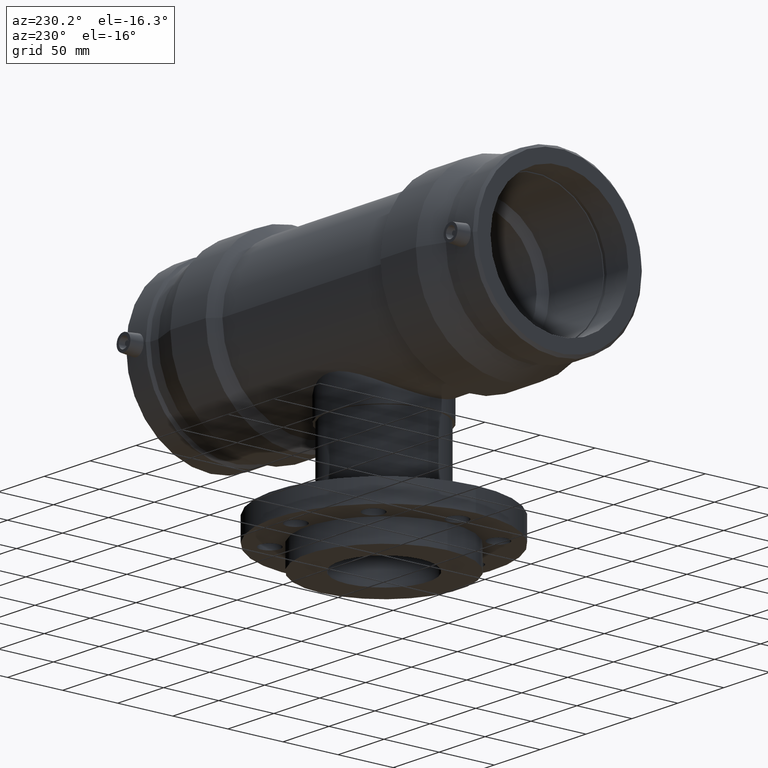
[diagram: clean part render]
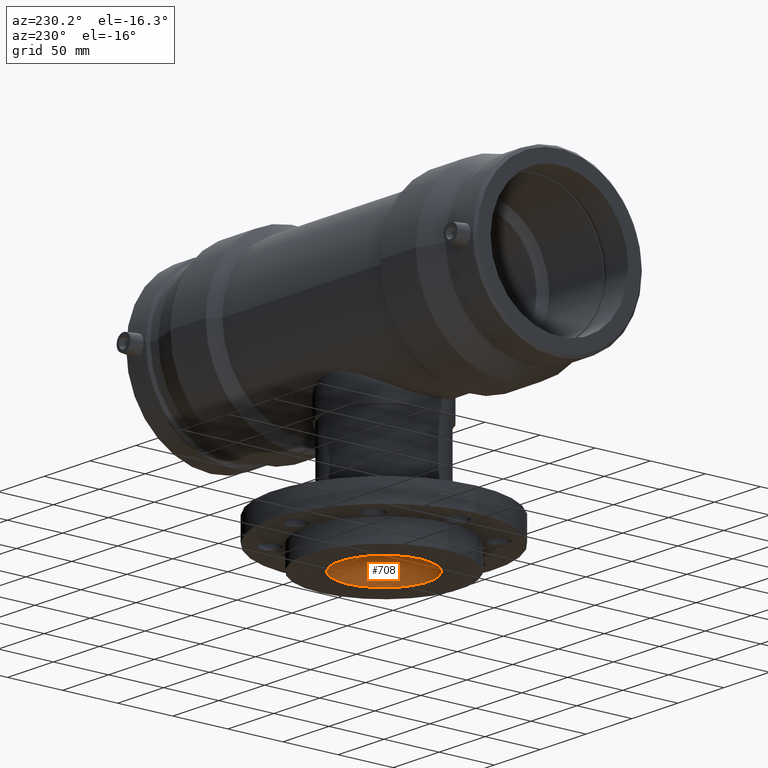
[diagram: same view with one face highlighted and labeled with its STEP entity id]
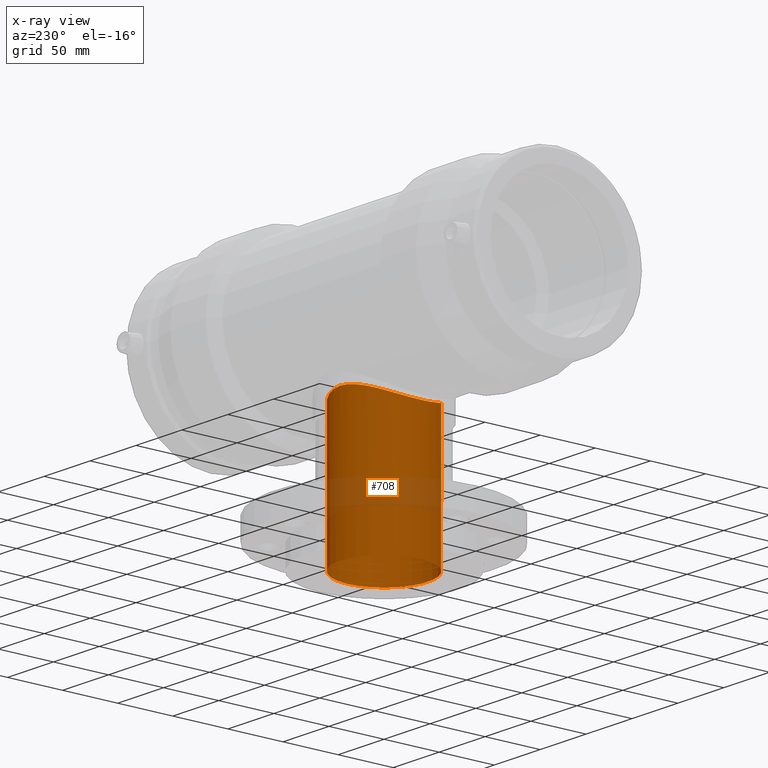
[diagram: x-ray of the same camera — body ghosted, the highlighted face saturated]
A machine part, auxiliary view. The second image highlights one B-rep face of the part: STEP entity #708.
The next image is the same camera in x-ray: the body ghosted, the highlighted face saturated — about 17% of this face is hidden behind the body in this view.
In plain terms, the highlighted cylindrical surface (bore or boss wall) has radius 40 mm, axis along (-0, 0, -1).
Its self-contained STEP definition (entity closure, byte-faithful):
#52=FACE_BOUND('',#293,.T.);
#137=CIRCLE('',#786,40.);
#193=CYLINDRICAL_SURFACE('',#785,40.);
#224=FACE_OUTER_BOUND('',#292,.T.);
#292=EDGE_LOOP('',(#578));
#293=EDGE_LOOP('',(#579));
#414=B_SPLINE_CURVE_WITH_KNOTS('',3,(#1267,#1268,#1269,#1270,#1271,#1272,
#1273,#1274,#1275,#1276,#1277,#1278,#1279,#1280,#1281,#1282,#1283,#1284,
#1285,#1286,#1287,#1288,#1289,#1290,#1291,#1292,#1293,#1294,#1295,#1296,
#1297,#1298,#1299,#1300,#1301,#1302,#1303,#1304,#1305,#1306,#1307,#1308,
#1309,#1310,#1311,#1312,#1313,#1314,#1315,#1316,#1317,#1318,#1319,#1320,
#1321,#1322,#1323,#1324,#1325,#1326,#1327,#1328,#1329,#1330,#1331,#1332,
#1333,#1334,#1335,#1336,#1337,#1338,#1339,#1340,#1341,#1342,#1343,#1344,
#1345,#1346,#1347,#1348,#1349,#1350,#1351,#1352,#1353,#1354,#1355,#1356,
#1357,#1358,#1359,#1360,#1361,#1362,#1363),.UNSPECIFIED.,.T.,.F.,(4,3,3,
3,3,3,3,3,3,3,3,3,3,3,3,3,3,3,3,3,3,3,3,3,3,3,3,3,3,3,3,3,4),(0.,0.773205231529878,
1.54641046305976,2.31961569458963,3.09282092611951,3.86304966834364,4.63327841056777,
5.40350715279191,6.17373589501604,6.94396463724017,7.7141933794643,8.48442212168843,
9.25465086391256,10.0278560954424,10.8010613269723,11.5742665585022,12.3474717900321,
13.120677021562,13.8938822530918,14.6670874846217,15.4402927161516,16.2105214583757,
16.9807502005999,17.750978942824,18.5212076850481,19.2914364272722,20.0616651694964,
20.8318939117205,21.6021226539446,22.3753278854745,23.1485331170044,23.9217383485343,
24.6949435800641),.UNSPECIFIED.);
#419=VERTEX_POINT('',#1266);
#437=VERTEX_POINT('',#1451);
#488=EDGE_CURVE('',#419,#419,#414,.T.);
#507=EDGE_CURVE('',#437,#437,#137,.T.);
#578=ORIENTED_EDGE('',*,*,#507,.T.);
#579=ORIENTED_EDGE('',*,*,#488,.F.);
#708=ADVANCED_FACE('',(#224,#52),#193,.F.);
#785=AXIS2_PLACEMENT_3D('',#1450,#935,#936);
#786=AXIS2_PLACEMENT_3D('',#1452,#937,#938);
#935=DIRECTION('center_axis',(-1.22464679914735E-16,0.,-1.));
#936=DIRECTION('ref_axis',(-1.,0.,0.));
#937=DIRECTION('center_axis',(-1.22464679914735E-16,0.,-1.));
#938=DIRECTION('ref_axis',(1.,0.,-1.22464679914735E-16));
#1266=CARTESIAN_POINT('',(-5.55111512312578E-15,40.,-62.5544762586979));
#1267=CARTESIAN_POINT('Ctrl Pts',(-7.7715611723761E-15,40.,-62.5544762586979));
#1268=CARTESIAN_POINT('Ctrl Pts',(2.57735077176625,40.,-62.5544762586979));
#1269=CARTESIAN_POINT('Ctrl Pts',(5.21903669254779,39.7470429807553,-62.7185000260456));
#1270=CARTESIAN_POINT('Ctrl Pts',(7.82581885655851,39.2269876389245,-63.0420965766183));
#1271=CARTESIAN_POINT('Ctrl Pts',(10.4326010205692,38.7069322970936,-63.3656931271909));
#1272=CARTESIAN_POINT('Ctrl Pts',(13.0047276935096,37.9202489059983,-63.8476195007932));
#1273=CARTESIAN_POINT('Ctrl Pts',(15.456860538083,36.892891758544,-64.4358365949689));
#1274=CARTESIAN_POINT('Ctrl Pts',(17.9089933826565,35.8655346110898,-65.0240536891447));
#1275=CARTESIAN_POINT('Ctrl Pts',(20.2460272576422,34.5958572989271,-65.7179032935187));
#1276=CARTESIAN_POINT('Ctrl Pts',(22.4023856760191,33.1380916170937,-66.4449349760921));
#1277=CARTESIAN_POINT('Ctrl Pts',(24.5587440943959,31.6803259352603,-67.1719666586655));
#1278=CARTESIAN_POINT('Ctrl Pts',(26.534547121693,30.0339953732308,-67.9308679791829));
#1279=CARTESIAN_POINT('Ctrl Pts',(28.2842712474619,28.2842712474619,-68.6517479748331));
#1280=CARTESIAN_POINT('Ctrl Pts',(30.0272597292698,26.541282765654,-69.3698529095935));
#1281=CARTESIAN_POINT('Ctrl Pts',(31.6725765063728,24.5688687689905,-70.1038662981135));
#1282=CARTESIAN_POINT('Ctrl Pts',(33.1316558517629,22.4119026528392,-70.786786333889));
#1283=CARTESIAN_POINT('Ctrl Pts',(34.5907351971531,20.254936536688,-71.4697063696645));
#1284=CARTESIAN_POINT('Ctrl Pts',(35.8637997226038,17.9132558815804,-72.1005442532786));
#1285=CARTESIAN_POINT('Ctrl Pts',(36.8931804209487,15.4561715320237,-72.6234759672977));
#1286=CARTESIAN_POINT('Ctrl Pts',(37.9225611192936,12.9990871824671,-73.1464076813167));
#1287=CARTESIAN_POINT('Ctrl Pts',(38.7099091313247,10.4217964829286,-73.561714902663));
#1288=CARTESIAN_POINT('Ctrl Pts',(39.2293617390013,7.81390923613644,-73.8376958094537));
#1289=CARTESIAN_POINT('Ctrl Pts',(39.7488143466779,5.20602198934433,-74.1136767162444));
#1290=CARTESIAN_POINT('Ctrl Pts',(40.,2.56742914074711,-74.25));
#1291=CARTESIAN_POINT('Ctrl Pts',(40.,4.16333634234434E-15,-74.25));
#1292=CARTESIAN_POINT('Ctrl Pts',(40.,-2.5674291407471,-74.25));
#1293=CARTESIAN_POINT('Ctrl Pts',(39.7488143466779,-5.20602198934432,-74.1136767162444));
#1294=CARTESIAN_POINT('Ctrl Pts',(39.2293617390013,-7.81390923613643,-73.8376958094537));
#1295=CARTESIAN_POINT('Ctrl Pts',(38.7099091313247,-10.4217964829286,-73.561714902663));
#1296=CARTESIAN_POINT('Ctrl Pts',(37.9225611192936,-12.9990871824671,-73.1464076813167));
#1297=CARTESIAN_POINT('Ctrl Pts',(36.8931804209487,-15.4561715320237,-72.6234759672977));
#1298=CARTESIAN_POINT('Ctrl Pts',(35.8637997226038,-17.9132558815804,-72.1005442532786));
#1299=CARTESIAN_POINT('Ctrl Pts',(34.5907351971531,-20.254936536688,-71.4697063696645));
#1300=CARTESIAN_POINT('Ctrl Pts',(33.1316558517629,-22.4119026528392,-70.786786333889));
#1301=CARTESIAN_POINT('Ctrl Pts',(31.6725765063728,-24.5688687689905,-70.1038662981135));
#1302=CARTESIAN_POINT('Ctrl Pts',(30.0272597292698,-26.541282765654,-69.3698529095935));
#1303=CARTESIAN_POINT('Ctrl Pts',(28.2842712474619,-28.2842712474619,-68.6517479748331));
#1304=CARTESIAN_POINT('Ctrl Pts',(26.534547121693,-30.0339953732308,-67.9308679791829));
#1305=CARTESIAN_POINT('Ctrl Pts',(24.5587440943959,-31.6803259352604,-67.1719666586655));
#1306=CARTESIAN_POINT('Ctrl Pts',(22.4023856760191,-33.1380916170937,-66.4449349760921));
#1307=CARTESIAN_POINT('Ctrl Pts',(20.2460272576422,-34.595857298927,-65.7179032935187));
#1308=CARTESIAN_POINT('Ctrl Pts',(17.9089933826565,-35.8655346110898,-65.0240536891447));
#1309=CARTESIAN_POINT('Ctrl Pts',(15.456860538083,-36.892891758544,-64.4358365949689));
#1310=CARTESIAN_POINT('Ctrl Pts',(13.0047276935096,-37.9202489059983,-63.8476195007932));
#1311=CARTESIAN_POINT('Ctrl Pts',(10.4326010205692,-38.7069322970936,-63.3656931271909));
#1312=CARTESIAN_POINT('Ctrl Pts',(7.82581885655849,-39.2269876389245,-63.0420965766183));
#1313=CARTESIAN_POINT('Ctrl Pts',(5.21903669254779,-39.7470429807553,-62.7185000260457));
#1314=CARTESIAN_POINT('Ctrl Pts',(2.57735077176625,-40.,-62.5544762586979));
#1315=CARTESIAN_POINT('Ctrl Pts',(-7.67616158174982E-15,-40.,-62.5544762586979));
#1316=CARTESIAN_POINT('Ctrl Pts',(-2.57735077176627,-40.,-62.5544762586979));
#1317=CARTESIAN_POINT('Ctrl Pts',(-5.2190366925478,-39.7470429807553,-62.7185000260456));
#1318=CARTESIAN_POINT('Ctrl Pts',(-7.82581885655851,-39.2269876389245,-63.0420965766183));
#1319=CARTESIAN_POINT('Ctrl Pts',(-10.4326010205692,-38.7069322970937,-63.3656931271909));
#1320=CARTESIAN_POINT('Ctrl Pts',(-13.0047276935096,-37.9202489059983,-63.8476195007932));
#1321=CARTESIAN_POINT('Ctrl Pts',(-15.4568605380831,-36.892891758544,-64.4358365949689));
#1322=CARTESIAN_POINT('Ctrl Pts',(-17.9089933826565,-35.8655346110898,-65.0240536891447));
#1323=CARTESIAN_POINT('Ctrl Pts',(-20.2460272576422,-34.5958572989271,-65.7179032935187));
#1324=CARTESIAN_POINT('Ctrl Pts',(-22.4023856760191,-33.1380916170937,-66.4449349760921));
#1325=CARTESIAN_POINT('Ctrl Pts',(-24.5587440943959,-31.6803259352604,-67.1719666586655));
#1326=CARTESIAN_POINT('Ctrl Pts',(-26.534547121693,-30.0339953732308,-67.9308679791829));
#1327=CARTESIAN_POINT('Ctrl Pts',(-28.2842712474619,-28.2842712474619,-68.6517479748331));
#1328=CARTESIAN_POINT('Ctrl Pts',(-30.0272597292698,-26.541282765654,-69.3698529095935));
#1329=CARTESIAN_POINT('Ctrl Pts',(-31.6725765063728,-24.5688687689905,-70.1038662981135));
#1330=CARTESIAN_POINT('Ctrl Pts',(-33.1316558517629,-22.4119026528392,-70.786786333889));
#1331=CARTESIAN_POINT('Ctrl Pts',(-34.5907351971531,-20.254936536688,-71.4697063696645));
#1332=CARTESIAN_POINT('Ctrl Pts',(-35.8637997226039,-17.9132558815804,-72.1005442532786));
#1333=CARTESIAN_POINT('Ctrl Pts',(-36.8931804209487,-15.4561715320237,-72.6234759672977));
#1334=CARTESIAN_POINT('Ctrl Pts',(-37.9225611192936,-12.9990871824671,-73.1464076813167));
#1335=CARTESIAN_POINT('Ctrl Pts',(-38.7099091313247,-10.4217964829286,-73.561714902663));
#1336=CARTESIAN_POINT('Ctrl Pts',(-39.2293617390013,-7.81390923613644,-73.8376958094537));
#1337=CARTESIAN_POINT('Ctrl Pts',(-39.7488143466779,-5.20602198934432,-74.1136767162444));
#1338=CARTESIAN_POINT('Ctrl Pts',(-40.,-2.56742914074711,-74.25));
#1339=CARTESIAN_POINT('Ctrl Pts',(-40.,-8.88178419700125E-15,-74.25));
#1340=CARTESIAN_POINT('Ctrl Pts',(-40.,2.56742914074709,-74.25));
#1341=CARTESIAN_POINT('Ctrl Pts',(-39.7488143466779,5.20602198934431,-74.1136767162444));
#1342=CARTESIAN_POINT('Ctrl Pts',(-39.2293617390013,7.81390923613643,-73.8376958094537));
#1343=CARTESIAN_POINT('Ctrl Pts',(-38.7099091313247,10.4217964829286,-73.561714902663));
#1344=CARTESIAN_POINT('Ctrl Pts',(-37.9225611192936,12.9990871824671,-73.1464076813167));
#1345=CARTESIAN_POINT('Ctrl Pts',(-36.8931804209487,15.4561715320237,-72.6234759672977));
#1346=CARTESIAN_POINT('Ctrl Pts',(-35.8637997226039,17.9132558815803,-72.1005442532786));
#1347=CARTESIAN_POINT('Ctrl Pts',(-34.5907351971531,20.2549365366879,-71.4697063696645));
#1348=CARTESIAN_POINT('Ctrl Pts',(-33.131655851763,22.4119026528392,-70.786786333889));
#1349=CARTESIAN_POINT('Ctrl Pts',(-31.6725765063728,24.5688687689905,-70.1038662981135));
#1350=CARTESIAN_POINT('Ctrl Pts',(-30.0272597292698,26.541282765654,-69.3698529095935));
#1351=CARTESIAN_POINT('Ctrl Pts',(-28.2842712474619,28.2842712474619,-68.6517479748331));
#1352=CARTESIAN_POINT('Ctrl Pts',(-26.534547121693,30.0339953732308,-67.9308679791829));
#1353=CARTESIAN_POINT('Ctrl Pts',(-24.5587440943959,31.6803259352604,-67.1719666586655));
#1354=CARTESIAN_POINT('Ctrl Pts',(-22.4023856760191,33.1380916170937,-66.4449349760921));
#1355=CARTESIAN_POINT('Ctrl Pts',(-20.2460272576422,34.595857298927,-65.7179032935187));
#1356=CARTESIAN_POINT('Ctrl Pts',(-17.9089933826565,35.8655346110897,-65.0240536891447));
#1357=CARTESIAN_POINT('Ctrl Pts',(-15.4568605380831,36.892891758544,-64.4358365949689));
#1358=CARTESIAN_POINT('Ctrl Pts',(-13.0047276935097,37.9202489059983,-63.8476195007932));
#1359=CARTESIAN_POINT('Ctrl Pts',(-10.4326010205692,38.7069322970936,-63.3656931271909));
#1360=CARTESIAN_POINT('Ctrl Pts',(-7.82581885655854,39.2269876389245,-63.0420965766183));
#1361=CARTESIAN_POINT('Ctrl Pts',(-5.21903669254782,39.7470429807553,-62.7185000260457));
#1362=CARTESIAN_POINT('Ctrl Pts',(-2.57735077176627,40.,-62.5544762586979));
#1363=CARTESIAN_POINT('Ctrl Pts',(-7.66071391225534E-15,40.,-62.5544762586979));
#1450=CARTESIAN_POINT('Origin',(-1.16341445918999E-14,0.,-95.));
#1451=CARTESIAN_POINT('',(-40.,0.,-190.));
#1452=CARTESIAN_POINT('Origin',(-2.32682891837997E-14,0.,-190.));